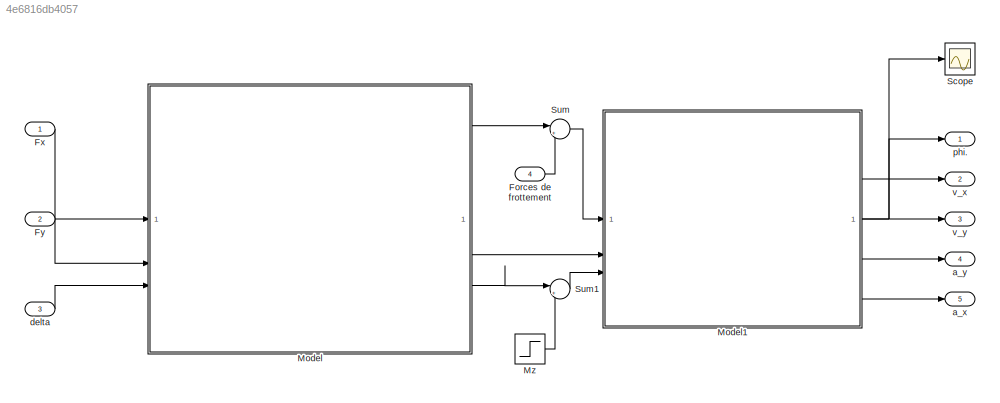
MODEL slx_4e6816db4057
KIND model
CONFIG AbsTol = auto
CONFIG EnableMultiTasking = off
CONFIG FixedStep = Ts
CONFIG MaxStep = auto
CONFIG MinStep = auto
CONFIG RelTol = 1e-3
CONFIG SampleTimeConstraint = Unconstrained
CONFIG SolverName = FixedStepAuto
CONFIG StartTime = 0.0
CONFIG StopTime = 10.0
BLOCK [Inport] Forces de frottement
  Port = 4
BLOCK [Inport] Fx
BLOCK [Inport] Fy
  Port = 2
BLOCK [ModelReference] Model
  ModelNameDialog = calcul_alpha_beta_gamma.slx
  ModelReferenceVersion = 1.4
BLOCK [ModelReference] Model1
  ModelNameDialog = calcul_phi_vy_vx.slx
  ModelReferenceVersion = 1.23
BLOCK [Step] Mz
  After = 0
  SampleTime = 0
BLOCK [Scope] Scope
  Floating = off
  NumInputPorts = 1
  ScopeSpecificationString = Simulink.scopes.TimeScopeBlockCfg('CurrentConfiguration', extmgr.ConfigurationSet(extmgr.Configuration('Core','General UI',true),extmgr.Configuration('Core','Source UI',true),extmgr.Configuration('Sources','WiredSimulink',true),extmgr.Configuration('Visuals','Time Domain',true,'SerializedDisplays',{struct('MinYLimReal','-2.86841','MaxYLimReal','15.77886','YLabelReal','','MinYLimMag','0.00000','Max...<+1450ch>
BLOCK [Sum] Sum
  Inputs = |++
BLOCK [Sum] Sum1
  Inputs = |++
BLOCK [Outport] a_x
  Port = 5
BLOCK [Outport] a_y
  Port = 4
BLOCK [Inport] delta
  Port = 3
BLOCK [Outport] phi.
BLOCK [Outport] v_x
  Port = 2
BLOCK [Outport] v_y
  Port = 3
LINE Forces de frottement:1 -> Sum:2
LINE Fx:1 -> Model:1
LINE Fy:1 -> Model:2
NET Model1:1 -> Scope:1, phi.:1
LINE Model1:2 -> v_x:1
LINE Model1:3 -> v_y:1
LINE Model1:4 -> a_y:1
LINE Model1:5 -> a_x:1
LINE Model:1 -> Sum:1
LINE Model:2 -> Model1:2
LINE Model:3 -> Sum1:1
LINE Mz:1 -> Sum1:2
LINE Sum1:1 -> Model1:3
LINE Sum:1 -> Model1:1
LINE delta:1 -> Model:3
note: NET lines group one-source signal fan-out (src -> all destinations, sorted); 1:1 wires keep LINE
